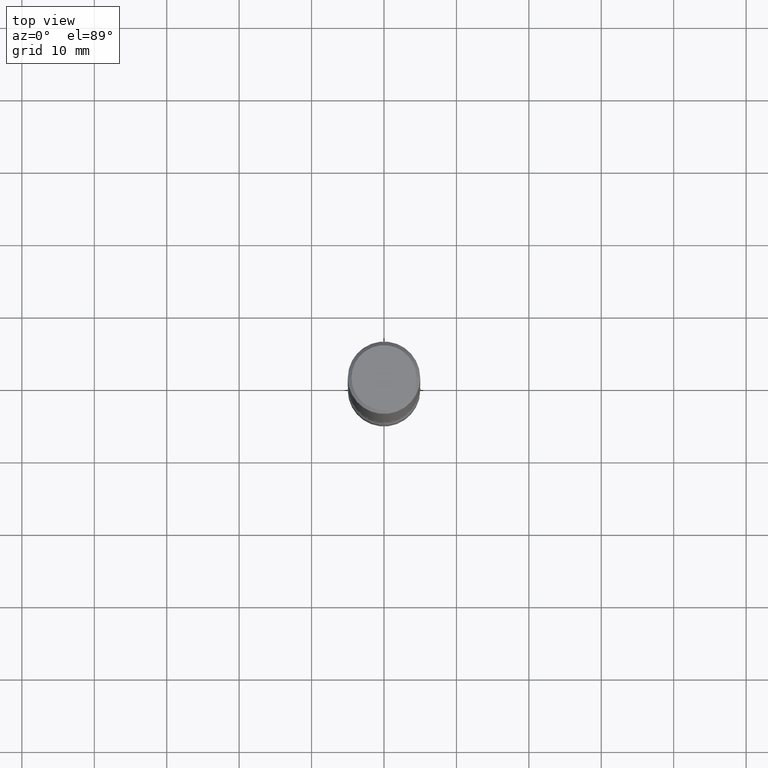
[diagram: clean part render]
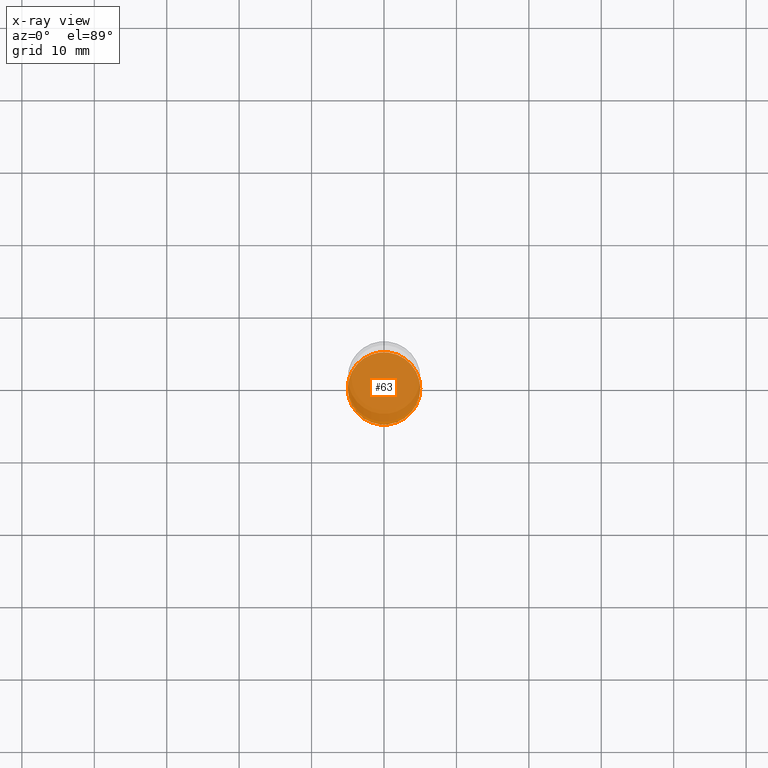
[diagram: x-ray — body ghosted, one internal face saturated and labeled with its STEP entity id]
A machine part, top view, then the same camera in x-ray: the body is ghosted and one INTERNAL B-rep face — a face not visible from any outside direction — is saturated and labeled: STEP entity #63.
In plain terms, the highlighted planar face has unit normal (0, -0, -1).
Its self-contained STEP definition (entity closure, byte-faithful):
#6 = EDGE_CURVE ( 'NONE', #33, #47, #157, .T. ) ;
#8 = AXIS2_PLACEMENT_3D ( 'NONE', #251, #342, #427 ) ;
#33 = VERTEX_POINT ( 'NONE', #434 ) ;
#47 = VERTEX_POINT ( 'NONE', #225 ) ;
#63 = ADVANCED_FACE ( 'NONE', ( #308 ), #366, .F. ) ;
#74 = ORIENTED_EDGE ( 'NONE', *, *, #430, .T. ) ;
#157 = CIRCLE ( 'NONE', #8, 0.1968500000000001082 ) ;
#178 = EDGE_LOOP ( 'NONE', ( #74, #471 ) ) ;
#179 = DIRECTION ( 'NONE',  ( 1.000000000000000000, -6.982962677686265133E-15, 0.000000000000000000 ) ) ;
#197 = CARTESIAN_POINT ( 'NONE',  ( 8.279868283981634472E-29, -1.182145751705512057E-14, -3.385799999999999699 ) ) ;
#225 = CARTESIAN_POINT ( 'NONE',  ( 0.1968500000000001082, -1.319605372015766376E-14, -3.385799999999999699 ) ) ;
#227 = AXIS2_PLACEMENT_3D ( 'NONE', #300, #549, #179 ) ;
#251 = CARTESIAN_POINT ( 'NONE',  ( 8.279868283981634472E-29, -1.182145751705512057E-14, -3.385799999999999699 ) ) ;
#270 = CIRCLE ( 'NONE', #227, 0.1968500000000001082 ) ;
#277 = AXIS2_PLACEMENT_3D ( 'NONE', #197, #361, #533 ) ;
#300 = CARTESIAN_POINT ( 'NONE',  ( 8.279868283981634472E-29, -1.182145751705512057E-14, -3.385799999999999699 ) ) ;
#308 = FACE_OUTER_BOUND ( 'NONE', #178, .T. ) ;
#342 = DIRECTION ( 'NONE',  ( -2.445468806185136597E-29, 3.491481338843145583E-15, 1.000000000000000000 ) ) ;
#361 = DIRECTION ( 'NONE',  ( 2.438088387897960049E-29, -3.491481338843145188E-15, -1.000000000000000000 ) ) ;
#366 = PLANE ( 'NONE',  #277 ) ;
#427 = DIRECTION ( 'NONE',  ( 1.000000000000000000, -6.982962677686265133E-15, 0.000000000000000000 ) ) ;
#430 = EDGE_CURVE ( 'NONE', #47, #33, #270, .T. ) ;
#434 = CARTESIAN_POINT ( 'NONE',  ( -0.1968500000000001082, -1.135061530750893177E-14, -3.385799999999999699 ) ) ;
#471 = ORIENTED_EDGE ( 'NONE', *, *, #6, .T. ) ;
#533 = DIRECTION ( 'NONE',  ( -1.000000000000000000, 6.982962677686265922E-15, -4.876176775795935793E-29 ) ) ;
#549 = DIRECTION ( 'NONE',  ( -2.445468806185136597E-29, 3.491481338843145583E-15, 1.000000000000000000 ) ) ;